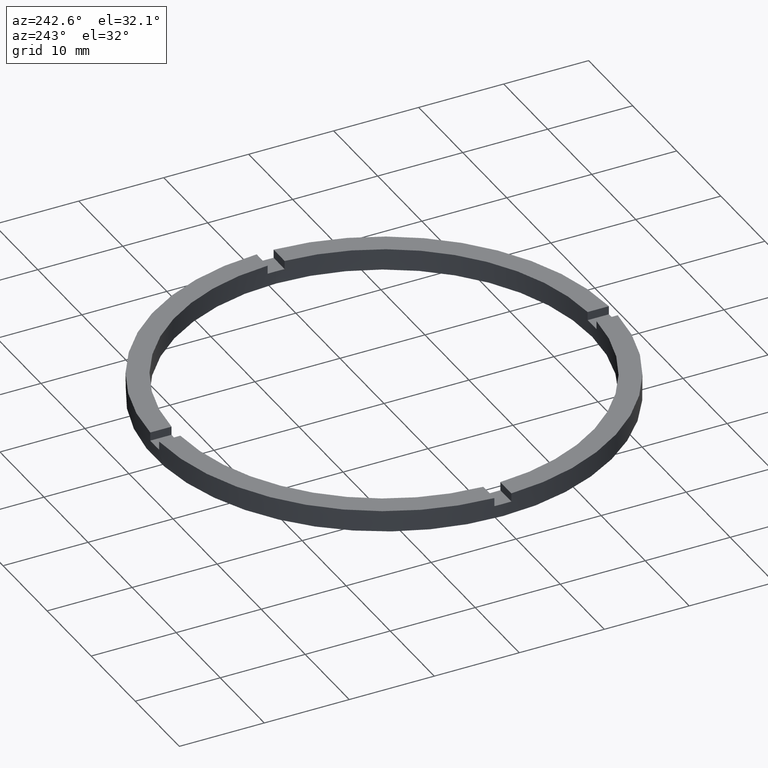
[diagram: clean part render]
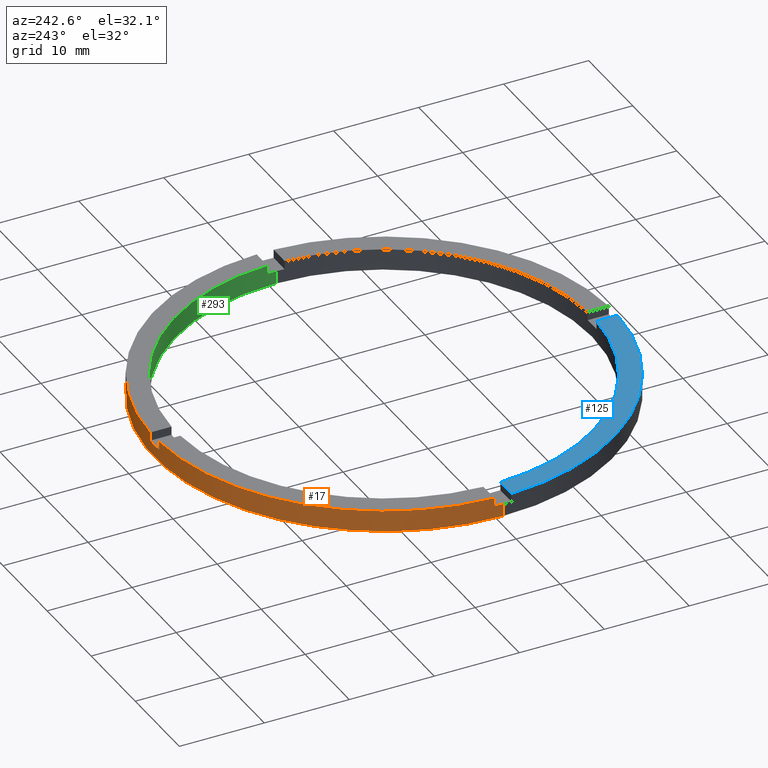
[diagram: same view with three faces highlighted in distinct colors, each labeled with its STEP entity id]
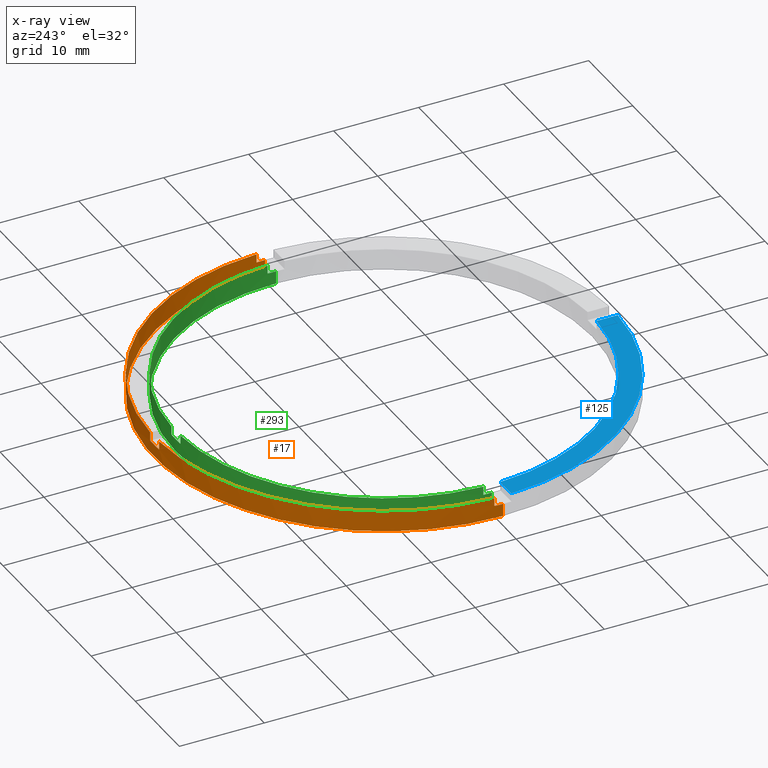
[diagram: x-ray of the same camera — body ghosted, the three highlighted faces saturated]
A machine part, auxiliary view with three faces highlighted in distinct colors.
The next image is the same camera in x-ray (body ghosted, the three faces saturated) — at least one of them is partly hidden behind the body in this view.
Their STEP definitions:

[orange] entity #17 — the highlighted cylindrical surface (partial cylindrical patch) has radius 27 mm, axis along (-0, -0, -1).
#3 = VERTEX_POINT ( 'NONE', #76 ) ;
#5 = VERTEX_POINT ( 'NONE', #333 ) ;
#7 = CARTESIAN_POINT ( 'NONE',  ( -1.000000000000026423, 26.98147512646407975, 2.500000000000000000 ) ) ;
#9 = ORIENTED_EDGE ( 'NONE', *, *, #588, .T. ) ;
#12 = CARTESIAN_POINT ( 'NONE',  ( -27.00000000000000000, 0.000000000000000000, 2.500000000000000000 ) ) ;
#14 = CARTESIAN_POINT ( 'NONE',  ( 0.000000000000000000, 0.000000000000000000, 2.500000000000000000 ) ) ;
#17 = ADVANCED_FACE ( 'NONE', ( #561 ), #656, .T. ) ;
#57 = DIRECTION ( 'NONE',  ( 1.000000000000000000, 0.000000000000000000, 0.000000000000000000 ) ) ;
#76 = CARTESIAN_POINT ( 'NONE',  ( 27.00000000000000000, 3.306546357697853733E-15, 0.000000000000000000 ) ) ;
#84 = CARTESIAN_POINT ( 'NONE',  ( -1.000000000000026423, 26.98147512646407975, 1.500000000000000000 ) ) ;
#97 = DIRECTION ( 'NONE',  ( 0.000000000000000000, 0.000000000000000000, 1.000000000000000000 ) ) ;
#115 = AXIS2_PLACEMENT_3D ( 'NONE', #380, #610, #573 ) ;
#121 = AXIS2_PLACEMENT_3D ( 'NONE', #136, #475, #57 ) ;
#122 = CARTESIAN_POINT ( 'NONE',  ( -26.98147512646408330, 0.9999999999999733546, 2.500000000000000000 ) ) ;
#136 = CARTESIAN_POINT ( 'NONE',  ( 0.000000000000000000, 0.000000000000000000, 1.500000000000000000 ) ) ;
#148 = VECTOR ( 'NONE', #160, 1000.000000000000000 ) ;
#156 = LINE ( 'NONE', #7, #148 ) ;
#160 = DIRECTION ( 'NONE',  ( -0.000000000000000000, -0.000000000000000000, -1.000000000000000000 ) ) ;
#162 = VERTEX_POINT ( 'NONE', #363 ) ;
#171 = CARTESIAN_POINT ( 'NONE',  ( 0.9999999999999735767, 26.98147512646408330, 2.500000000000000000 ) ) ;
#172 = LINE ( 'NONE', #122, #198 ) ;
#176 = LINE ( 'NONE', #12, #697 ) ;
#177 = DIRECTION ( 'NONE',  ( 1.000000000000000000, 0.000000000000000000, 0.000000000000000000 ) ) ;
#178 = VECTOR ( 'NONE', #642, 1000.000000000000000 ) ;
#179 = CARTESIAN_POINT ( 'NONE',  ( 27.00000000000000000, 3.306546357697853733E-15, 1.500000000000000000 ) ) ;
#188 = DIRECTION ( 'NONE',  ( 0.000000000000000000, 0.000000000000000000, 1.000000000000000000 ) ) ;
#191 = LINE ( 'NONE', #600, #178 ) ;
#196 = CIRCLE ( 'NONE', #625, 27.00000000000000000 ) ;
#198 = VECTOR ( 'NONE', #204, 1000.000000000000000 ) ;
#201 = DIRECTION ( 'NONE',  ( 0.000000000000000000, -0.000000000000000000, 1.000000000000000000 ) ) ;
#204 = DIRECTION ( 'NONE',  ( 0.000000000000000000, 0.000000000000000000, 1.000000000000000000 ) ) ;
#209 = CIRCLE ( 'NONE', #695, 27.00000000000000000 ) ;
#210 = ORIENTED_EDGE ( 'NONE', *, *, #523, .F. ) ;
#215 = CARTESIAN_POINT ( 'NONE',  ( 26.98147512646408686, 0.9999999999998427924, 2.500000000000000000 ) ) ;
#235 = ORIENTED_EDGE ( 'NONE', *, *, #322, .F. ) ;
#236 = ORIENTED_EDGE ( 'NONE', *, *, #776, .F. ) ;
#250 = VERTEX_POINT ( 'NONE', #407 ) ;
#252 = VERTEX_POINT ( 'NONE', #506 ) ;
#274 = DIRECTION ( 'NONE',  ( 1.000000000000000000, 0.000000000000000000, 0.000000000000000000 ) ) ;
#278 = DIRECTION ( 'NONE',  ( -0.000000000000000000, -0.000000000000000000, -1.000000000000000000 ) ) ;
#280 = CARTESIAN_POINT ( 'NONE',  ( 26.98147512646408686, 0.9999999999998427924, 2.500000000000000000 ) ) ;
#281 = VERTEX_POINT ( 'NONE', #703 ) ;
#282 = AXIS2_PLACEMENT_3D ( 'NONE', #731, #377, #514 ) ;
#285 = ORIENTED_EDGE ( 'NONE', *, *, #375, .T. ) ;
#287 = ORIENTED_EDGE ( 'NONE', *, *, #706, .F. ) ;
#300 = ORIENTED_EDGE ( 'NONE', *, *, #496, .F. ) ;
#304 = EDGE_LOOP ( 'NONE', ( #235, #345, #285, #540, #236, #9, #210, #688, #287, #598, #300, #606 ) ) ;
#322 = EDGE_CURVE ( 'NONE', #487, #560, #666, .T. ) ;
#333 = CARTESIAN_POINT ( 'NONE',  ( 0.9999999999999735767, 26.98147512646408330, 1.500000000000000000 ) ) ;
#341 = CARTESIAN_POINT ( 'NONE',  ( 0.000000000000000000, 0.000000000000000000, 1.500000000000000000 ) ) ;
#345 = ORIENTED_EDGE ( 'NONE', *, *, #440, .T. ) ;
#346 = CARTESIAN_POINT ( 'NONE',  ( -26.98147512646408330, 0.9999999999999733546, 2.500000000000000000 ) ) ;
#347 = EDGE_CURVE ( 'NONE', #281, #767, #156, .T. ) ;
#356 = AXIS2_PLACEMENT_3D ( 'NONE', #749, #201, #177 ) ;
#363 = CARTESIAN_POINT ( 'NONE',  ( -26.98147512646408330, 0.9999999999999733546, 1.500000000000000000 ) ) ;
#370 = EDGE_CURVE ( 'NONE', #5, #530, #705, .T. ) ;
#375 = EDGE_CURVE ( 'NONE', #3, #250, #721, .T. ) ;
#376 = CARTESIAN_POINT ( 'NONE',  ( 0.000000000000000000, 0.000000000000000000, 2.500000000000000000 ) ) ;
#377 = DIRECTION ( 'NONE',  ( -0.000000000000000000, -0.000000000000000000, -1.000000000000000000 ) ) ;
#380 = CARTESIAN_POINT ( 'NONE',  ( 0.000000000000000000, 0.000000000000000000, 0.000000000000000000 ) ) ;
#381 = DIRECTION ( 'NONE',  ( -0.000000000000000000, -0.000000000000000000, -1.000000000000000000 ) ) ;
#407 = CARTESIAN_POINT ( 'NONE',  ( -27.00000000000000000, 0.000000000000000000, 0.000000000000000000 ) ) ;
#440 = EDGE_CURVE ( 'NONE', #487, #3, #191, .T. ) ;
#441 = CIRCLE ( 'NONE', #356, 27.00000000000000000 ) ;
#458 = VECTOR ( 'NONE', #381, 1000.000000000000000 ) ;
#468 = LINE ( 'NONE', #280, #458 ) ;
#473 = VECTOR ( 'NONE', #97, 1000.000000000000000 ) ;
#475 = DIRECTION ( 'NONE',  ( 0.000000000000000000, 0.000000000000000000, 1.000000000000000000 ) ) ;
#481 = CARTESIAN_POINT ( 'NONE',  ( 0.9999999999999735767, 26.98147512646408330, 2.500000000000000000 ) ) ;
#487 = VERTEX_POINT ( 'NONE', #179 ) ;
#491 = DIRECTION ( 'NONE',  ( 0.000000000000000000, 0.000000000000000000, 1.000000000000000000 ) ) ;
#496 = EDGE_CURVE ( 'NONE', #682, #530, #196, .T. ) ;
#506 = CARTESIAN_POINT ( 'NONE',  ( -27.00000000000000000, 0.000000000000000000, 1.500000000000000000 ) ) ;
#509 = AXIS2_PLACEMENT_3D ( 'NONE', #341, #617, #568 ) ;
#514 = DIRECTION ( 'NONE',  ( -1.000000000000000000, 0.000000000000000000, 0.000000000000000000 ) ) ;
#523 = EDGE_CURVE ( 'NONE', #281, #725, #209, .T. ) ;
#530 = VERTEX_POINT ( 'NONE', #481 ) ;
#540 = ORIENTED_EDGE ( 'NONE', *, *, #768, .F. ) ;
#560 = VERTEX_POINT ( 'NONE', #708 ) ;
#561 = FACE_OUTER_BOUND ( 'NONE', #304, .T. ) ;
#568 = DIRECTION ( 'NONE',  ( 1.000000000000000000, 0.000000000000000000, 0.000000000000000000 ) ) ;
#573 = DIRECTION ( 'NONE',  ( 1.000000000000000000, 0.000000000000000000, 0.000000000000000000 ) ) ;
#588 = EDGE_CURVE ( 'NONE', #162, #725, #172, .T. ) ;
#598 = ORIENTED_EDGE ( 'NONE', *, *, #370, .T. ) ;
#600 = CARTESIAN_POINT ( 'NONE',  ( 27.00000000000000000, 3.306546357697853733E-15, 2.500000000000000000 ) ) ;
#606 = ORIENTED_EDGE ( 'NONE', *, *, #637, .T. ) ;
#610 = DIRECTION ( 'NONE',  ( 0.000000000000000000, 0.000000000000000000, 1.000000000000000000 ) ) ;
#617 = DIRECTION ( 'NONE',  ( 0.000000000000000000, 0.000000000000000000, 1.000000000000000000 ) ) ;
#625 = AXIS2_PLACEMENT_3D ( 'NONE', #376, #188, #274 ) ;
#637 = EDGE_CURVE ( 'NONE', #682, #560, #468, .T. ) ;
#642 = DIRECTION ( 'NONE',  ( -0.000000000000000000, -0.000000000000000000, -1.000000000000000000 ) ) ;
#647 = DIRECTION ( 'NONE',  ( 1.000000000000000000, 0.000000000000000000, 0.000000000000000000 ) ) ;
#656 = CYLINDRICAL_SURFACE ( 'NONE', #282, 27.00000000000000000 ) ;
#666 = CIRCLE ( 'NONE', #121, 27.00000000000000000 ) ;
#682 = VERTEX_POINT ( 'NONE', #215 ) ;
#688 = ORIENTED_EDGE ( 'NONE', *, *, #347, .T. ) ;
#695 = AXIS2_PLACEMENT_3D ( 'NONE', #14, #491, #647 ) ;
#697 = VECTOR ( 'NONE', #278, 1000.000000000000000 ) ;
#702 = CIRCLE ( 'NONE', #509, 27.00000000000000000 ) ;
#703 = CARTESIAN_POINT ( 'NONE',  ( -1.000000000000026423, 26.98147512646407975, 2.500000000000000000 ) ) ;
#705 = LINE ( 'NONE', #171, #473 ) ;
#706 = EDGE_CURVE ( 'NONE', #5, #767, #441, .T. ) ;
#708 = CARTESIAN_POINT ( 'NONE',  ( 26.98147512646408686, 0.9999999999998427924, 1.500000000000000000 ) ) ;
#721 = CIRCLE ( 'NONE', #115, 27.00000000000000000 ) ;
#725 = VERTEX_POINT ( 'NONE', #346 ) ;
#731 = CARTESIAN_POINT ( 'NONE',  ( 0.000000000000000000, 0.000000000000000000, 2.500000000000000000 ) ) ;
#749 = CARTESIAN_POINT ( 'NONE',  ( 0.000000000000000000, 0.000000000000000000, 1.500000000000000000 ) ) ;
#767 = VERTEX_POINT ( 'NONE', #84 ) ;
#768 = EDGE_CURVE ( 'NONE', #252, #250, #176, .T. ) ;
#776 = EDGE_CURVE ( 'NONE', #162, #252, #702, .T. ) ;

[blue] entity #125 — the highlighted planar face has unit normal (0, 0, 1).
#4 = CARTESIAN_POINT ( 'NONE',  ( 0.000000000000000000, 0.000000000000000000, 2.500000000000000000 ) ) ;
#54 = EDGE_CURVE ( 'NONE', #434, #279, #671, .T. ) ;
#74 = EDGE_CURVE ( 'NONE', #237, #239, #151, .T. ) ;
#104 = AXIS2_PLACEMENT_3D ( 'NONE', #698, #398, #548 ) ;
#105 = PLANE ( 'NONE',  #586 ) ;
#109 = EDGE_CURVE ( 'NONE', #239, #434, #424, .T. ) ;
#110 = CARTESIAN_POINT ( 'NONE',  ( -24.47958332978729601, -1.000000000000026201, 2.500000000000000000 ) ) ;
#125 = ADVANCED_FACE ( 'NONE', ( #139 ), #105, .T. ) ;
#126 = VECTOR ( 'NONE', #564, 1000.000000000000000 ) ;
#139 = FACE_OUTER_BOUND ( 'NONE', #754, .T. ) ;
#151 = LINE ( 'NONE', #772, #126 ) ;
#194 = CIRCLE ( 'NONE', #386, 27.00000000000000000 ) ;
#237 = VERTEX_POINT ( 'NONE', #326 ) ;
#239 = VERTEX_POINT ( 'NONE', #110 ) ;
#242 = ORIENTED_EDGE ( 'NONE', *, *, #54, .F. ) ;
#279 = VERTEX_POINT ( 'NONE', #596 ) ;
#324 = CARTESIAN_POINT ( 'NONE',  ( -1.000000000000161426, -17.00000000000018119, 2.500000000000000000 ) ) ;
#326 = CARTESIAN_POINT ( 'NONE',  ( -26.98147512646407975, -1.000000000000026645, 2.500000000000000000 ) ) ;
#335 = CARTESIAN_POINT ( 'NONE',  ( 0.000000000000000000, 0.000000000000000000, 2.500000000000000000 ) ) ;
#386 = AXIS2_PLACEMENT_3D ( 'NONE', #335, #648, #746 ) ;
#388 = EDGE_CURVE ( 'NONE', #237, #279, #194, .T. ) ;
#397 = DIRECTION ( 'NONE',  ( 1.000000000000000000, 0.000000000000000000, -0.000000000000000000 ) ) ;
#398 = DIRECTION ( 'NONE',  ( 0.000000000000000000, 0.000000000000000000, 1.000000000000000000 ) ) ;
#413 = VECTOR ( 'NONE', #627, 1000.000000000000000 ) ;
#424 = CIRCLE ( 'NONE', #104, 24.50000000000000000 ) ;
#434 = VERTEX_POINT ( 'NONE', #575 ) ;
#548 = DIRECTION ( 'NONE',  ( 1.000000000000000000, 0.000000000000000000, 0.000000000000000000 ) ) ;
#564 = DIRECTION ( 'NONE',  ( 1.000000000000000000, 1.734723475976807341E-16, -0.000000000000000000 ) ) ;
#575 = CARTESIAN_POINT ( 'NONE',  ( -1.000000000000160316, -24.47958332978728890, 2.500000000000000000 ) ) ;
#586 = AXIS2_PLACEMENT_3D ( 'NONE', #4, #714, #397 ) ;
#596 = CARTESIAN_POINT ( 'NONE',  ( -1.000000000000160094, -26.98147512646407620, 2.500000000000000000 ) ) ;
#599 = ORIENTED_EDGE ( 'NONE', *, *, #74, .F. ) ;
#627 = DIRECTION ( 'NONE',  ( 1.301042606982605567E-16, -1.000000000000000000, 0.000000000000000000 ) ) ;
#648 = DIRECTION ( 'NONE',  ( 0.000000000000000000, 0.000000000000000000, 1.000000000000000000 ) ) ;
#671 = LINE ( 'NONE', #324, #413 ) ;
#698 = CARTESIAN_POINT ( 'NONE',  ( 0.000000000000000000, 0.000000000000000000, 2.500000000000000000 ) ) ;
#714 = DIRECTION ( 'NONE',  ( 0.000000000000000000, 0.000000000000000000, 1.000000000000000000 ) ) ;
#728 = ORIENTED_EDGE ( 'NONE', *, *, #109, .F. ) ;
#738 = ORIENTED_EDGE ( 'NONE', *, *, #388, .T. ) ;
#746 = DIRECTION ( 'NONE',  ( 1.000000000000000000, 0.000000000000000000, 0.000000000000000000 ) ) ;
#754 = EDGE_LOOP ( 'NONE', ( #242, #728, #599, #738 ) ) ;
#772 = CARTESIAN_POINT ( 'NONE',  ( -17.00000000000018474, -1.000000000000024869, 2.500000000000000000 ) ) ;

[green] entity #293 — the highlighted cylindrical surface (partial cylindrical patch) has radius 24.5 mm, axis along (-0, -0, -1).
#1 = CARTESIAN_POINT ( 'NONE',  ( -24.47958332978729601, 0.9999999999999737987, 2.500000000000000000 ) ) ;
#8 = CARTESIAN_POINT ( 'NONE',  ( 24.47958332978729956, 0.9999999999998427924, 2.500000000000000000 ) ) ;
#18 = VERTEX_POINT ( 'NONE', #571 ) ;
#23 = CARTESIAN_POINT ( 'NONE',  ( 24.47958332978729956, 0.9999999999998427924, 1.500000000000000000 ) ) ;
#31 = DIRECTION ( 'NONE',  ( 0.000000000000000000, -0.000000000000000000, 1.000000000000000000 ) ) ;
#32 = ORIENTED_EDGE ( 'NONE', *, *, #589, .F. ) ;
#60 = DIRECTION ( 'NONE',  ( 0.000000000000000000, 0.000000000000000000, 1.000000000000000000 ) ) ;
#68 = DIRECTION ( 'NONE',  ( -0.000000000000000000, -0.000000000000000000, -1.000000000000000000 ) ) ;
#69 = EDGE_CURVE ( 'NONE', #761, #426, #421, .T. ) ;
#78 = CARTESIAN_POINT ( 'NONE',  ( 0.000000000000000000, 0.000000000000000000, 1.500000000000000000 ) ) ;
#82 = ORIENTED_EDGE ( 'NONE', *, *, #649, .T. ) ;
#103 = CARTESIAN_POINT ( 'NONE',  ( 24.50000000000000000, 3.000384657911015469E-15, 0.000000000000000000 ) ) ;
#108 = EDGE_CURVE ( 'NONE', #462, #217, #406, .T. ) ;
#112 = DIRECTION ( 'NONE',  ( 1.000000000000000000, 0.000000000000000000, 0.000000000000000000 ) ) ;
#118 = CARTESIAN_POINT ( 'NONE',  ( 24.50000000000000000, 3.000384657911015469E-15, 2.500000000000000000 ) ) ;
#123 = EDGE_CURVE ( 'NONE', #742, #760, #408, .T. ) ;
#132 = EDGE_CURVE ( 'NONE', #742, #291, #143, .T. ) ;
#135 = VECTOR ( 'NONE', #686, 1000.000000000000000 ) ;
#137 = FACE_OUTER_BOUND ( 'NONE', #353, .T. ) ;
#143 = LINE ( 'NONE', #774, #166 ) ;
#147 = CARTESIAN_POINT ( 'NONE',  ( 0.000000000000000000, 0.000000000000000000, 1.500000000000000000 ) ) ;
#152 = DIRECTION ( 'NONE',  ( 1.000000000000000000, 0.000000000000000000, 0.000000000000000000 ) ) ;
#155 = DIRECTION ( 'NONE',  ( 0.000000000000000000, 0.000000000000000000, 1.000000000000000000 ) ) ;
#166 = VECTOR ( 'NONE', #155, 1000.000000000000000 ) ;
#189 = CIRCLE ( 'NONE', #327, 24.50000000000000000 ) ;
#192 = LINE ( 'NONE', #118, #693 ) ;
#195 = DIRECTION ( 'NONE',  ( 1.000000000000000000, 0.000000000000000000, 0.000000000000000000 ) ) ;
#213 = LINE ( 'NONE', #716, #713 ) ;
#214 = VERTEX_POINT ( 'NONE', #103 ) ;
#217 = VERTEX_POINT ( 'NONE', #602 ) ;
#218 = AXIS2_PLACEMENT_3D ( 'NONE', #371, #412, #619 ) ;
#227 = ORIENTED_EDGE ( 'NONE', *, *, #108, .F. ) ;
#240 = CARTESIAN_POINT ( 'NONE',  ( 0.000000000000000000, 0.000000000000000000, 2.500000000000000000 ) ) ;
#243 = ORIENTED_EDGE ( 'NONE', *, *, #582, .T. ) ;
#246 = EDGE_CURVE ( 'NONE', #214, #297, #654, .T. ) ;
#251 = ORIENTED_EDGE ( 'NONE', *, *, #123, .T. ) ;
#253 = CARTESIAN_POINT ( 'NONE',  ( 0.9999999999999735767, 24.47958332978729601, 2.500000000000000000 ) ) ;
#257 = DIRECTION ( 'NONE',  ( -1.000000000000000000, 0.000000000000000000, 0.000000000000000000 ) ) ;
#258 = ORIENTED_EDGE ( 'NONE', *, *, #132, .F. ) ;
#291 = VERTEX_POINT ( 'NONE', #1 ) ;
#293 = ADVANCED_FACE ( 'NONE', ( #137 ), #676, .F. ) ;
#294 = DIRECTION ( 'NONE',  ( 0.000000000000000000, 0.000000000000000000, 1.000000000000000000 ) ) ;
#297 = VERTEX_POINT ( 'NONE', #392 ) ;
#306 = ORIENTED_EDGE ( 'NONE', *, *, #396, .T. ) ;
#325 = DIRECTION ( 'NONE',  ( -0.000000000000000000, -0.000000000000000000, -1.000000000000000000 ) ) ;
#327 = AXIS2_PLACEMENT_3D ( 'NONE', #652, #31, #195 ) ;
#344 = CARTESIAN_POINT ( 'NONE',  ( -24.47958332978729601, 0.9999999999999737987, 1.500000000000000000 ) ) ;
#349 = EDGE_CURVE ( 'NONE', #547, #291, #680, .T. ) ;
#353 = EDGE_LOOP ( 'NONE', ( #32, #82, #757, #243, #227, #781, #499, #478, #258, #251, #306, #748 ) ) ;
#358 = CARTESIAN_POINT ( 'NONE',  ( 0.000000000000000000, 0.000000000000000000, 0.000000000000000000 ) ) ;
#360 = DIRECTION ( 'NONE',  ( -0.000000000000000000, -0.000000000000000000, -1.000000000000000000 ) ) ;
#365 = DIRECTION ( 'NONE',  ( 1.000000000000000000, 0.000000000000000000, 0.000000000000000000 ) ) ;
#371 = CARTESIAN_POINT ( 'NONE',  ( 0.000000000000000000, 0.000000000000000000, 2.500000000000000000 ) ) ;
#392 = CARTESIAN_POINT ( 'NONE',  ( -24.50000000000000000, 0.000000000000000000, 0.000000000000000000 ) ) ;
#394 = EDGE_CURVE ( 'NONE', #547, #765, #213, .T. ) ;
#396 = EDGE_CURVE ( 'NONE', #760, #297, #455, .T. ) ;
#406 = LINE ( 'NONE', #253, #435 ) ;
#408 = CIRCLE ( 'NONE', #522, 24.50000000000000000 ) ;
#412 = DIRECTION ( 'NONE',  ( 0.000000000000000000, 0.000000000000000000, 1.000000000000000000 ) ) ;
#421 = LINE ( 'NONE', #8, #135 ) ;
#425 = CARTESIAN_POINT ( 'NONE',  ( -24.50000000000000000, 0.000000000000000000, 2.500000000000000000 ) ) ;
#426 = VERTEX_POINT ( 'NONE', #23 ) ;
#435 = VECTOR ( 'NONE', #60, 1000.000000000000000 ) ;
#455 = LINE ( 'NONE', #425, #712 ) ;
#462 = VERTEX_POINT ( 'NONE', #613 ) ;
#478 = ORIENTED_EDGE ( 'NONE', *, *, #349, .T. ) ;
#485 = DIRECTION ( 'NONE',  ( 0.000000000000000000, 0.000000000000000000, 1.000000000000000000 ) ) ;
#492 = DIRECTION ( 'NONE',  ( 0.000000000000000000, 0.000000000000000000, 1.000000000000000000 ) ) ;
#499 = ORIENTED_EDGE ( 'NONE', *, *, #394, .F. ) ;
#522 = AXIS2_PLACEMENT_3D ( 'NONE', #147, #692, #592 ) ;
#526 = CARTESIAN_POINT ( 'NONE',  ( 24.47958332978729956, 0.9999999999998427924, 2.500000000000000000 ) ) ;
#547 = VERTEX_POINT ( 'NONE', #638 ) ;
#571 = CARTESIAN_POINT ( 'NONE',  ( 24.50000000000000000, 3.000384657911015469E-15, 1.500000000000000000 ) ) ;
#577 = DIRECTION ( 'NONE',  ( -0.000000000000000000, -0.000000000000000000, -1.000000000000000000 ) ) ;
#578 = AXIS2_PLACEMENT_3D ( 'NONE', #78, #294, #112 ) ;
#582 = EDGE_CURVE ( 'NONE', #761, #217, #696, .T. ) ;
#583 = CARTESIAN_POINT ( 'NONE',  ( -1.000000000000026423, 24.47958332978729601, 1.500000000000000000 ) ) ;
#589 = EDGE_CURVE ( 'NONE', #18, #214, #192, .T. ) ;
#592 = DIRECTION ( 'NONE',  ( 1.000000000000000000, 0.000000000000000000, 0.000000000000000000 ) ) ;
#602 = CARTESIAN_POINT ( 'NONE',  ( 0.9999999999999735767, 24.47958332978729601, 2.500000000000000000 ) ) ;
#612 = CARTESIAN_POINT ( 'NONE',  ( -24.50000000000000000, 0.000000000000000000, 1.500000000000000000 ) ) ;
#613 = CARTESIAN_POINT ( 'NONE',  ( 0.9999999999999735767, 24.47958332978729601, 1.500000000000000000 ) ) ;
#619 = DIRECTION ( 'NONE',  ( 1.000000000000000000, 0.000000000000000000, 0.000000000000000000 ) ) ;
#628 = AXIS2_PLACEMENT_3D ( 'NONE', #710, #325, #257 ) ;
#630 = EDGE_CURVE ( 'NONE', #462, #765, #189, .T. ) ;
#638 = CARTESIAN_POINT ( 'NONE',  ( -1.000000000000026423, 24.47958332978729601, 2.500000000000000000 ) ) ;
#649 = EDGE_CURVE ( 'NONE', #18, #426, #732, .T. ) ;
#652 = CARTESIAN_POINT ( 'NONE',  ( 0.000000000000000000, 0.000000000000000000, 1.500000000000000000 ) ) ;
#654 = CIRCLE ( 'NONE', #655, 24.50000000000000000 ) ;
#655 = AXIS2_PLACEMENT_3D ( 'NONE', #358, #485, #152 ) ;
#676 = CYLINDRICAL_SURFACE ( 'NONE', #628, 24.50000000000000000 ) ;
#680 = CIRCLE ( 'NONE', #779, 24.50000000000000000 ) ;
#686 = DIRECTION ( 'NONE',  ( -0.000000000000000000, -0.000000000000000000, -1.000000000000000000 ) ) ;
#692 = DIRECTION ( 'NONE',  ( 0.000000000000000000, 0.000000000000000000, 1.000000000000000000 ) ) ;
#693 = VECTOR ( 'NONE', #577, 1000.000000000000000 ) ;
#696 = CIRCLE ( 'NONE', #218, 24.50000000000000000 ) ;
#710 = CARTESIAN_POINT ( 'NONE',  ( 0.000000000000000000, 0.000000000000000000, 2.500000000000000000 ) ) ;
#712 = VECTOR ( 'NONE', #360, 1000.000000000000000 ) ;
#713 = VECTOR ( 'NONE', #68, 1000.000000000000000 ) ;
#716 = CARTESIAN_POINT ( 'NONE',  ( -1.000000000000026423, 24.47958332978729601, 2.500000000000000000 ) ) ;
#732 = CIRCLE ( 'NONE', #578, 24.50000000000000000 ) ;
#742 = VERTEX_POINT ( 'NONE', #344 ) ;
#748 = ORIENTED_EDGE ( 'NONE', *, *, #246, .F. ) ;
#757 = ORIENTED_EDGE ( 'NONE', *, *, #69, .F. ) ;
#760 = VERTEX_POINT ( 'NONE', #612 ) ;
#761 = VERTEX_POINT ( 'NONE', #526 ) ;
#765 = VERTEX_POINT ( 'NONE', #583 ) ;
#774 = CARTESIAN_POINT ( 'NONE',  ( -24.47958332978729601, 0.9999999999999737987, 2.500000000000000000 ) ) ;
#779 = AXIS2_PLACEMENT_3D ( 'NONE', #240, #492, #365 ) ;
#781 = ORIENTED_EDGE ( 'NONE', *, *, #630, .T. ) ;